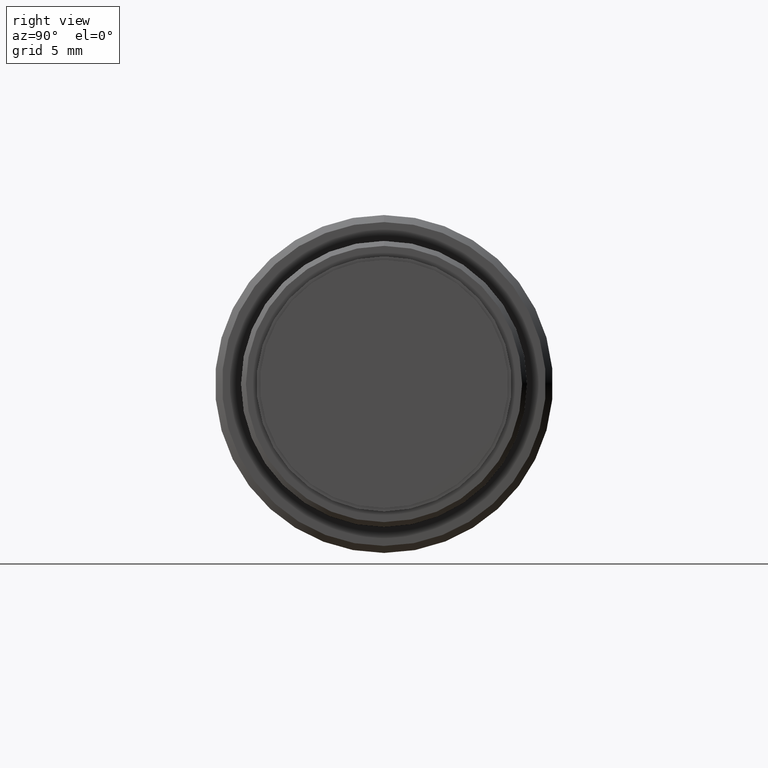
[diagram: clean part render]
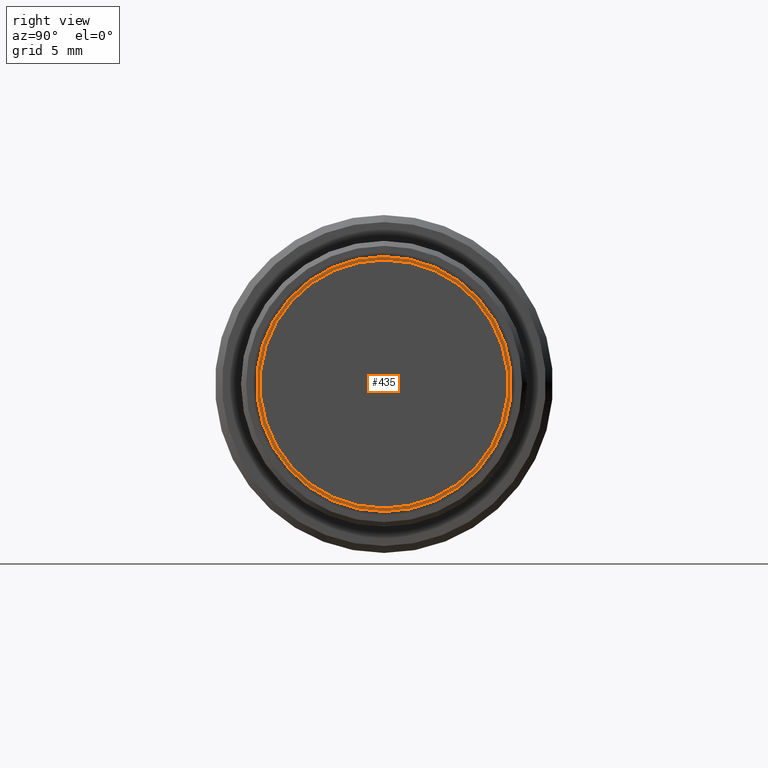
[diagram: same view with one face highlighted and labeled with its STEP entity id]
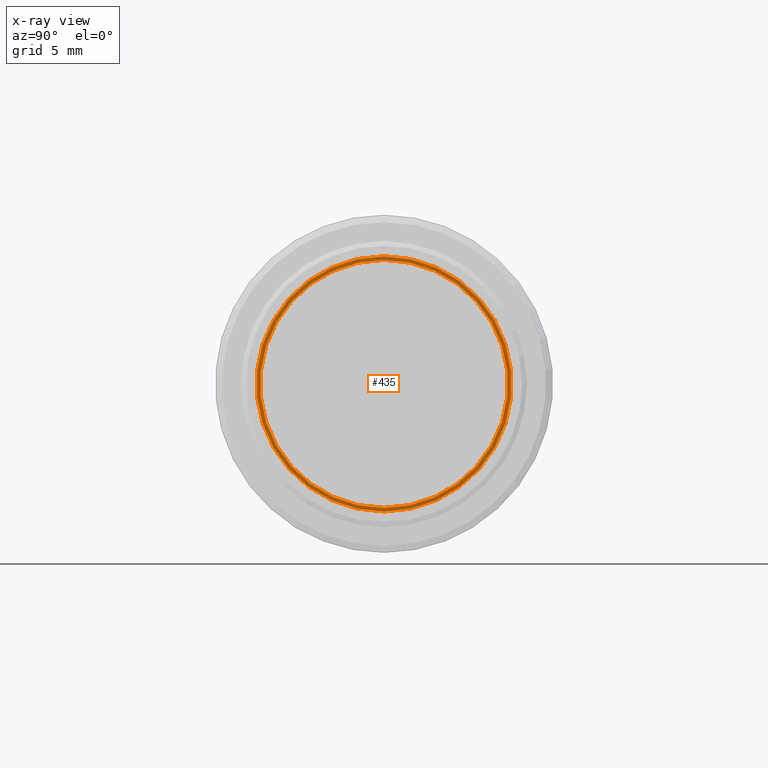
[diagram: x-ray of the same camera — body ghosted, the highlighted face saturated]
A machine part, right view. The second image highlights one B-rep face of the part: STEP entity #435.
The next image is the same camera in x-ray: the body ghosted, the highlighted face saturated — about 0% of this face is hidden behind the body in this view.
In plain terms, the highlighted planar face has unit normal (1, 0, 0).
Its self-contained STEP definition (entity closure, byte-faithful):
#13 = PLANE ( 'NONE',  #571 ) ;
#89 = CARTESIAN_POINT ( 'NONE',  ( -0.8000000000000000444, 0.000000000000000000, -8.810000000000000497 ) ) ;
#96 = CIRCLE ( 'NONE', #481, 9.060000000000000497 ) ;
#133 = EDGE_CURVE ( 'NONE', #341, #842, #188, .T. ) ;
#149 = VERTEX_POINT ( 'NONE', #196 ) ;
#165 = DIRECTION ( 'NONE',  ( 0.000000000000000000, 1.000000000000000000, 0.000000000000000000 ) ) ;
#177 = DIRECTION ( 'NONE',  ( 1.000000000000000000, 0.000000000000000000, 0.000000000000000000 ) ) ;
#188 = CIRCLE ( 'NONE', #314, 8.810000000000000497 ) ;
#196 = CARTESIAN_POINT ( 'NONE',  ( -0.8000000000000000444, 0.000000000000000000, -9.060000000000000497 ) ) ;
#198 = ORIENTED_EDGE ( 'NONE', *, *, #671, .T. ) ;
#244 = CARTESIAN_POINT ( 'NONE',  ( -0.8000000000000000444, 0.000000000000000000, 0.000000000000000000 ) ) ;
#247 = FACE_BOUND ( 'NONE', #664, .T. ) ;
#268 = CIRCLE ( 'NONE', #826, 8.810000000000000497 ) ;
#314 = AXIS2_PLACEMENT_3D ( 'NONE', #479, #932, #553 ) ;
#341 = VERTEX_POINT ( 'NONE', #353 ) ;
#353 = CARTESIAN_POINT ( 'NONE',  ( -0.8000000000000000444, 1.078913830048817981E-15, 8.810000000000000497 ) ) ;
#379 = ORIENTED_EDGE ( 'NONE', *, *, #494, .T. ) ;
#389 = CARTESIAN_POINT ( 'NONE',  ( -0.8000000000000000444, 9.060000000000000497, 0.000000000000000000 ) ) ;
#435 = ADVANCED_FACE ( 'NONE', ( #595, #247 ), #13, .T. ) ;
#436 = ORIENTED_EDGE ( 'NONE', *, *, #133, .F. ) ;
#446 = DIRECTION ( 'NONE',  ( 1.000000000000000000, 0.000000000000000000, 0.000000000000000000 ) ) ;
#465 = DIRECTION ( 'NONE',  ( 0.000000000000000000, 0.000000000000000000, -1.000000000000000000 ) ) ;
#471 = DIRECTION ( 'NONE',  ( 0.000000000000000000, 0.000000000000000000, -1.000000000000000000 ) ) ;
#479 = CARTESIAN_POINT ( 'NONE',  ( -0.8000000000000000444, 0.000000000000000000, 0.000000000000000000 ) ) ;
#481 = AXIS2_PLACEMENT_3D ( 'NONE', #244, #446, #465 ) ;
#494 = EDGE_CURVE ( 'NONE', #781, #149, #96, .T. ) ;
#524 = CARTESIAN_POINT ( 'NONE',  ( -0.8000000000000000444, 0.000000000000000000, 0.000000000000000000 ) ) ;
#553 = DIRECTION ( 'NONE',  ( 0.000000000000000000, 0.000000000000000000, -1.000000000000000000 ) ) ;
#571 = AXIS2_PLACEMENT_3D ( 'NONE', #389, #675, #165 ) ;
#589 = CIRCLE ( 'NONE', #711, 9.060000000000000497 ) ;
#595 = FACE_OUTER_BOUND ( 'NONE', #913, .T. ) ;
#620 = ORIENTED_EDGE ( 'NONE', *, *, #901, .F. ) ;
#637 = CARTESIAN_POINT ( 'NONE',  ( -0.8000000000000000444, 0.000000000000000000, 0.000000000000000000 ) ) ;
#664 = EDGE_LOOP ( 'NONE', ( #620, #436 ) ) ;
#671 = EDGE_CURVE ( 'NONE', #149, #781, #589, .T. ) ;
#675 = DIRECTION ( 'NONE',  ( 1.000000000000000000, 0.000000000000000000, 0.000000000000000000 ) ) ;
#711 = AXIS2_PLACEMENT_3D ( 'NONE', #637, #177, #471 ) ;
#729 = CARTESIAN_POINT ( 'NONE',  ( -0.8000000000000000444, 1.109530000027499993E-15, 9.060000000000000497 ) ) ;
#745 = DIRECTION ( 'NONE',  ( 1.000000000000000000, 0.000000000000000000, 0.000000000000000000 ) ) ;
#781 = VERTEX_POINT ( 'NONE', #729 ) ;
#826 = AXIS2_PLACEMENT_3D ( 'NONE', #524, #745, #959 ) ;
#842 = VERTEX_POINT ( 'NONE', #89 ) ;
#901 = EDGE_CURVE ( 'NONE', #842, #341, #268, .T. ) ;
#913 = EDGE_LOOP ( 'NONE', ( #198, #379 ) ) ;
#932 = DIRECTION ( 'NONE',  ( 1.000000000000000000, 0.000000000000000000, 0.000000000000000000 ) ) ;
#959 = DIRECTION ( 'NONE',  ( 0.000000000000000000, 0.000000000000000000, -1.000000000000000000 ) ) ;